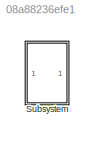
MODEL slx_08a88236efe1
KIND model
CONFIG AbsTol = auto
CONFIG EnableMultiTasking = off
CONFIG FixedStep = auto
CONFIG MaxStep = auto
CONFIG MinStep = auto
CONFIG RelTol = 1e-3
CONFIG SampleTimeConstraint = Unconstrained
CONFIG SolverName = VariableStepAuto
CONFIG StartTime = 0.0
CONFIG StopTime = 10.0
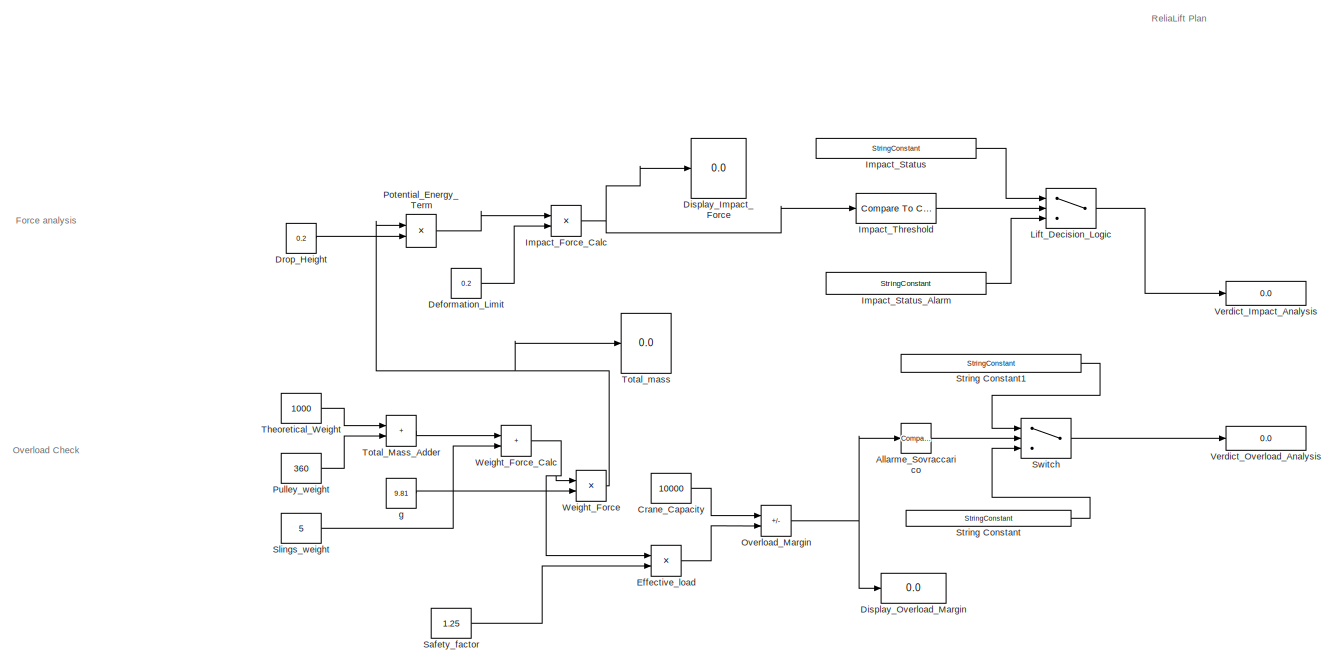
[diagram: Subsystem - part 1/2, full width, middle band]
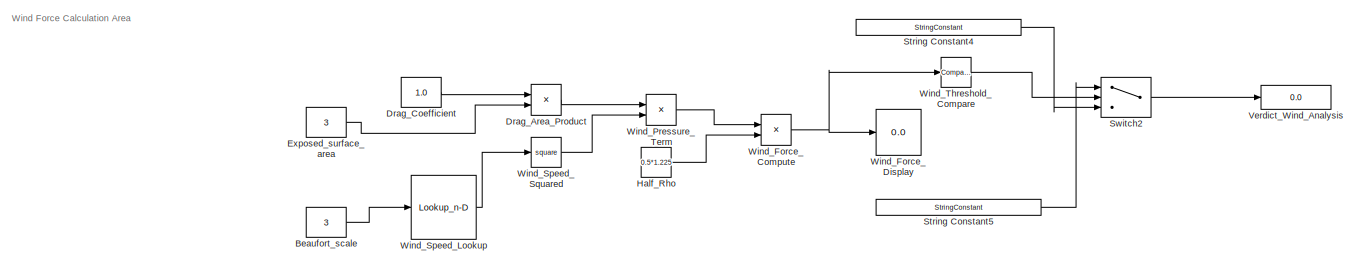
[diagram: Subsystem - part 2/2, full width, bottom band]
BLOCK [SubSystem] Subsystem
BLOCK [Reference] Subsystem/Allarme_Sovraccarico  REF=simulink/Logic and Bit
Operations/Compare
To Zero
  SourceBlock = simulink/Logic and Bit\nOperations/Compare\nTo Zero
  SourceType = Compare To Zero
BLOCK [Constant] Subsystem/Beaufort_scale
  Value = 3
BLOCK [Constant] Subsystem/Crane_Capacity
  Value = 10000
BLOCK [Constant] Subsystem/Deformation_Limit
  Value = 0.2
BLOCK [Display] Subsystem/Display_Impact_Force
  Decimation = 1
  Format = bank
BLOCK [Display] Subsystem/Display_Overload_Margin
  Decimation = 1
  Format = bank
BLOCK [Product] Subsystem/Drag_Area_Product
BLOCK [Constant] Subsystem/Drag_Coefficient
  Value = 1.0
BLOCK [Constant] Subsystem/Drop_Height
  Value = 0.2
BLOCK [Product] Subsystem/Effective_load
BLOCK [Constant] Subsystem/Exposed_surface_area
  Value = 3
BLOCK [Constant] Subsystem/Half_Rho
  Value = 0.5*1.225
BLOCK [Product] Subsystem/Impact_Force_Calc
  Inputs = */
BLOCK [StringConstant] Subsystem/Impact_Status
  String = "Safe To Lift"
BLOCK [StringConstant] Subsystem/Impact_Status_Alarm
  String = "impact_Force_Alarm"
BLOCK [Reference] Subsystem/Impact_Threshold  REF=simulink/Logic and Bit
Operations/Compare
To Constant
  SourceBlock = simulink/Logic and Bit\nOperations/Compare\nTo Constant
  SourceType = Compare To Constant
BLOCK [Switch] Subsystem/Lift_Decision_Logic
  Criteria = u2 > Threshold
  InputSameDT = off
  SaturateOnIntegerOverflow = off
BLOCK [Sum] Subsystem/Overload_Margin
  IconShape = rectangular
  Inputs = +-
BLOCK [Product] Subsystem/Potential_Energy_Term
BLOCK [Constant] Subsystem/Pulley_weight
  Value = 360
BLOCK [Constant] Subsystem/Safety_factor
  Value = 1.25
BLOCK [Constant] Subsystem/Slings_weight
  Value = 5
BLOCK [StringConstant] Subsystem/String Constant
  String = "Safe To Lift"
BLOCK [StringConstant] Subsystem/String Constant1
  String = "Overload Alarm"
BLOCK [StringConstant] Subsystem/String Constant4
  String = "Safe To Lift"
BLOCK [StringConstant] Subsystem/String Constant5
  String = "Wind_Alarm"
BLOCK [Switch] Subsystem/Switch
  Criteria = u2 ~= 0
  InputSameDT = off
  SaturateOnIntegerOverflow = off
BLOCK [Switch] Subsystem/Switch2
  Criteria = u2 > Threshold
  InputSameDT = off
  SaturateOnIntegerOverflow = off
BLOCK [Constant] Subsystem/Theoretical_Weight
  Value = 1000
BLOCK [Sum] Subsystem/Total_Mass_Adder
  IconShape = rectangular
BLOCK [Display] Subsystem/Total_mass
  Decimation = 1
  Format = bank
BLOCK [Display] Subsystem/Verdict_Impact_Analysis
  Decimation = 1
BLOCK [Display] Subsystem/Verdict_Overload_Analysis
  Decimation = 1
BLOCK [Display] Subsystem/Verdict_Wind_Analysis
  Decimation = 1
  Format = bank
BLOCK [Product] Subsystem/Weight_Force
BLOCK [Sum] Subsystem/Weight_Force_Calc
  IconShape = rectangular
BLOCK [Product] Subsystem/Wind_Force_Compute
BLOCK [Display] Subsystem/Wind_Force_Display
  Decimation = 1
BLOCK [Product] Subsystem/Wind_Pressure_Term
BLOCK [Lookup_n-D] Subsystem/Wind_Speed_Lookup
  BreakpointsForDimension1 = [0;1;2;3;4;5;6;7;9;10;11;12]
  InputPortMap = u0
  InternalRulePriority = Speed
  NumberOfTableDimensions = 1
  RndMeth = Simplest
  Table = [0;1.5;3.2999999999999998;5.4000000000000004;7.9000000000000004;10.699999999999999;13.800000000000001;17.100000000000001;20.699999999999999;24.399999999999999;28.399999999999999;36.899999999999999]
BLOCK [Math] Subsystem/Wind_Speed_Squared
  Operator = square
BLOCK [Reference] Subsystem/Wind_Threshold_Compare  REF=simulink/Logic and Bit
Operations/Compare
To Constant
  SourceBlock = simulink/Logic and Bit\nOperations/Compare\nTo Constant
  SourceType = Compare To Constant
BLOCK [Constant] Subsystem/g
  Value = 9.81
ANNOTATION Subsystem: Relia Lift Plan
ANNOTATION Subsystem: Wind Force Calculation Area
ANNOTATION Subsystem: Force analysis
ANNOTATION Subsystem: Overload Check
LINE Subsystem/Allarme_Sovraccarico:1 -> Subsystem/Switch:2
LINE Subsystem/Beaufort_scale:1 -> Subsystem/Wind_Speed_Lookup:1
LINE Subsystem/Crane_Capacity:1 -> Subsystem/Overload_Margin:1
LINE Subsystem/Deformation_Limit:1 -> Subsystem/Impact_Force_Calc:2
LINE Subsystem/Drag_Area_Product:1 -> Subsystem/Wind_Pressure_Term:1
LINE Subsystem/Drag_Coefficient:1 -> Subsystem/Drag_Area_Product:1
LINE Subsystem/Drop_Height:1 -> Subsystem/Potential_Energy_Term:2
LINE Subsystem/Effective_load:1 -> Subsystem/Overload_Margin:2
LINE Subsystem/Exposed_surface_area:1 -> Subsystem/Drag_Area_Product:2
LINE Subsystem/Half_Rho:1 -> Subsystem/Wind_Force_Compute:2
NET Subsystem/Impact_Force_Calc:1 -> Subsystem/Display_Impact_Force:1, Subsystem/Impact_Threshold:1
LINE Subsystem/Impact_Status:1 -> Subsystem/Lift_Decision_Logic:1
LINE Subsystem/Impact_Status_Alarm:1 -> Subsystem/Lift_Decision_Logic:3
LINE Subsystem/Impact_Threshold:1 -> Subsystem/Lift_Decision_Logic:2
LINE Subsystem/Lift_Decision_Logic:1 -> Subsystem/Verdict_Impact_Analysis:1
NET Subsystem/Overload_Margin:1 -> Subsystem/Allarme_Sovraccarico:1, Subsystem/Display_Overload_Margin:1
LINE Subsystem/Potential_Energy_Term:1 -> Subsystem/Impact_Force_Calc:1
LINE Subsystem/Pulley_weight:1 -> Subsystem/Total_Mass_Adder:2
LINE Subsystem/Safety_factor:1 -> Subsystem/Effective_load:2
LINE Subsystem/Slings_weight:1 -> Subsystem/Weight_Force_Calc:2
LINE Subsystem/String Constant1:1 -> Subsystem/Switch:1
LINE Subsystem/String Constant4:1 -> Subsystem/Switch2:3
LINE Subsystem/String Constant5:1 -> Subsystem/Switch2:1
LINE Subsystem/String Constant:1 -> Subsystem/Switch:3
LINE Subsystem/Switch2:1 -> Subsystem/Verdict_Wind_Analysis:1
LINE Subsystem/Switch:1 -> Subsystem/Verdict_Overload_Analysis:1
LINE Subsystem/Theoretical_Weight:1 -> Subsystem/Total_Mass_Adder:1
LINE Subsystem/Total_Mass_Adder:1 -> Subsystem/Weight_Force_Calc:1
NET Subsystem/Weight_Force:1 -> Subsystem/Potential_Energy_Term:1, Subsystem/Total_mass:1
NET Subsystem/Weight_Force_Calc:1 -> Subsystem/Effective_load:1, Subsystem/Weight_Force:1
NET Subsystem/Wind_Force_Compute:1 -> Subsystem/Wind_Force_Display:1, Subsystem/Wind_Threshold_Compare:1
LINE Subsystem/Wind_Pressure_Term:1 -> Subsystem/Wind_Force_Compute:1
LINE Subsystem/Wind_Speed_Lookup:1 -> Subsystem/Wind_Speed_Squared:1
LINE Subsystem/Wind_Speed_Squared:1 -> Subsystem/Wind_Pressure_Term:2
LINE Subsystem/Wind_Threshold_Compare:1 -> Subsystem/Switch2:2
LINE Subsystem/g:1 -> Subsystem/Weight_Force:2
note: NET lines group one-source signal fan-out (src -> all destinations, sorted); 1:1 wires keep LINE
